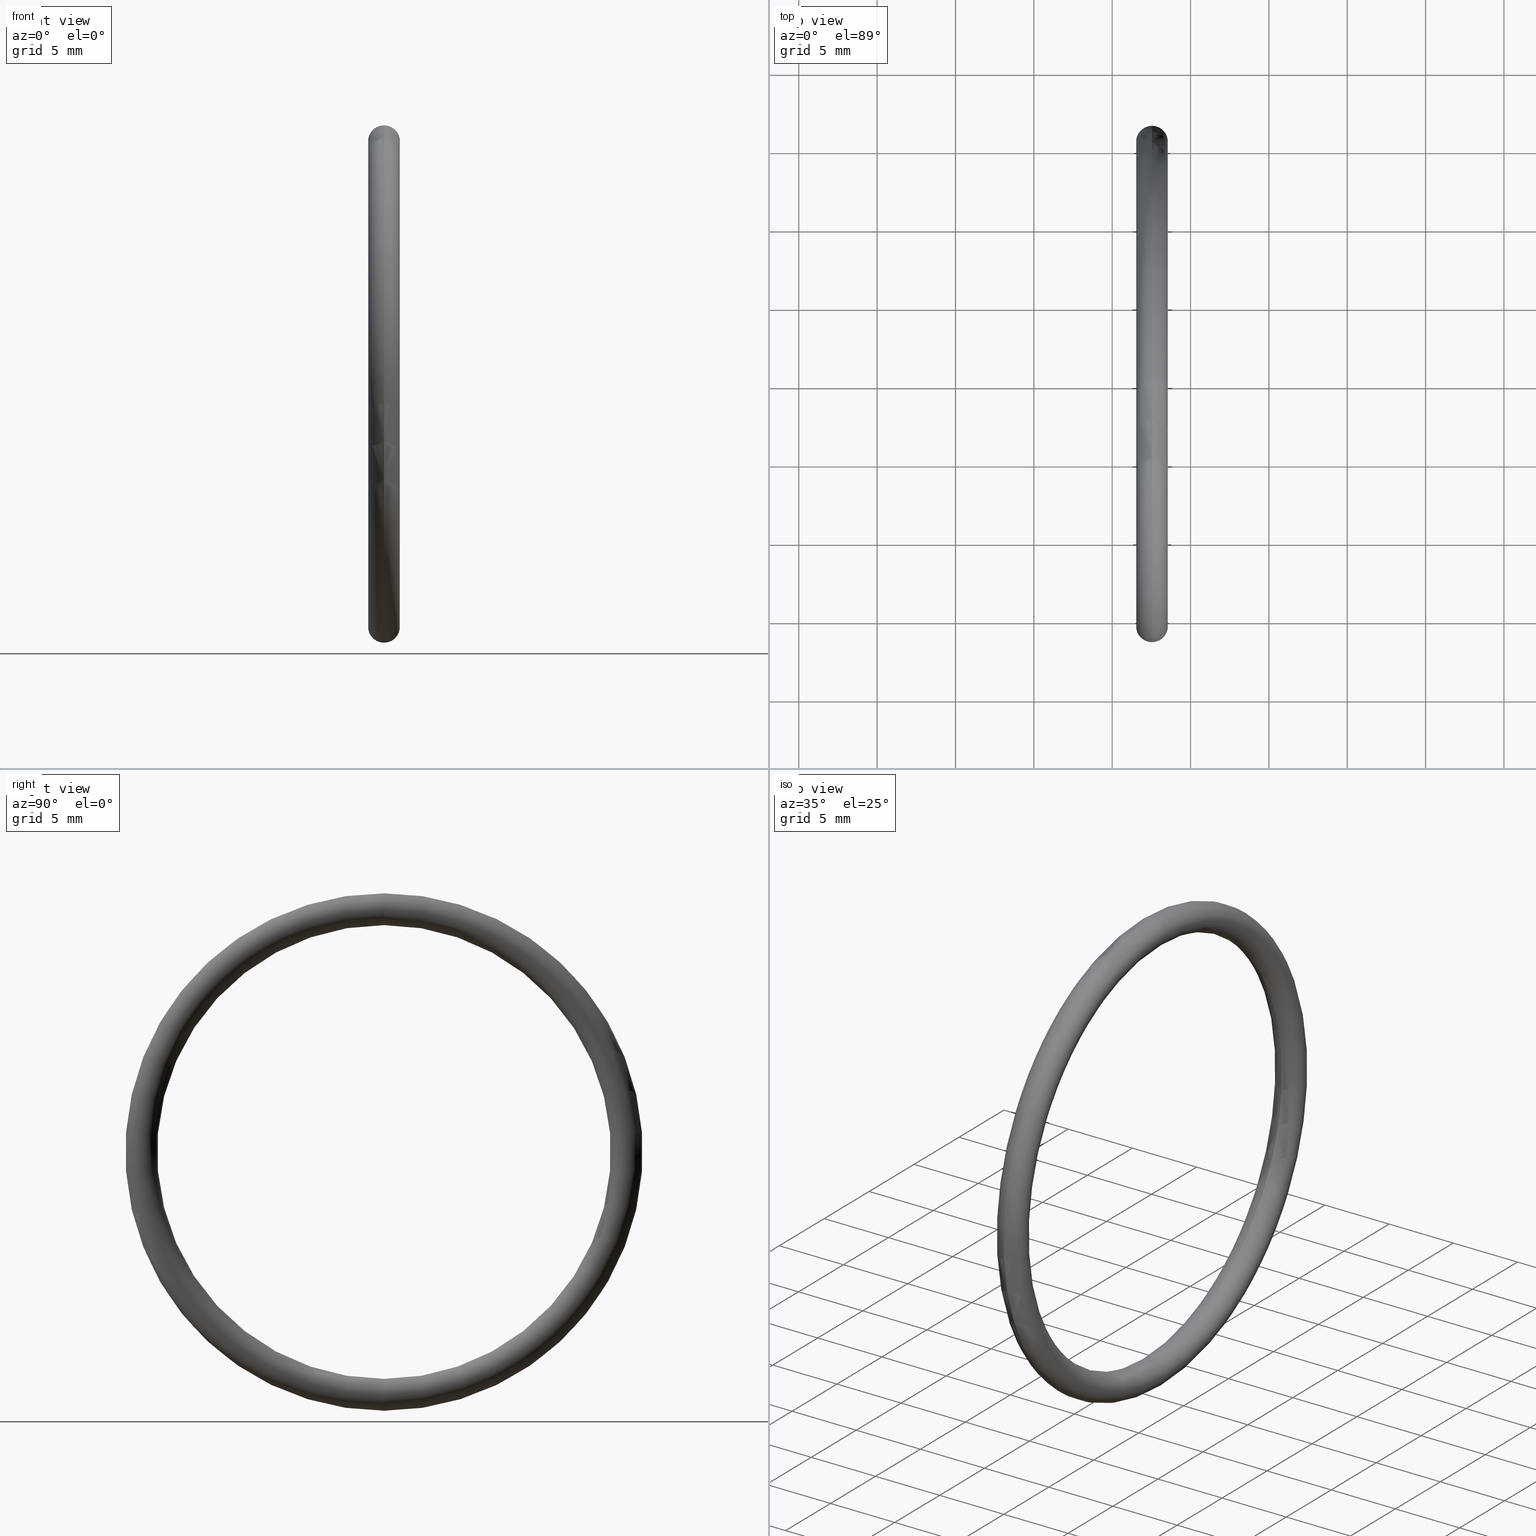
[diagram: canonical four-view strip — front | top / right | iso, engineering-drawing reading convention]
A machine part, canonical four-view strip (front | top / right | iso — engineering-drawing reading convention). The complete STEP part file that produces these views, byte-faithful:
ISO-10303-21;
HEADER;
FILE_DESCRIPTION (( 'STEP AP203' ),
    '1' );
FILE_NAME ('OR-10-VT.STEP',
    '2008-06-24T11:02:41',
    ( 'BSI05' ),
    ( 'BAYSTATE' ),
    'SwSTEP 2.0',
    'SolidWorks 2007',
    '' );
FILE_SCHEMA (( 'CONFIG_CONTROL_DESIGN' ));
ENDSEC;

DATA;
#1 = EDGE_CURVE ( 'NONE', #21, #9, #47, .T. ) ;
#2 = ORIENTED_EDGE ( 'NONE', *, *, #35, .F. ) ;
#3 = EDGE_LOOP ( 'NONE', ( #2, #6, #23, #7 ) ) ;
#4 = ADVANCED_FACE ( 'NONE', ( #48 ), #41, .T. ) ;
#5 = EDGE_CURVE ( 'NONE', #15, #9, #196, .T. ) ;
#6 = ORIENTED_EDGE ( 'NONE', *, *, #5, .F. ) ;
#7 = ORIENTED_EDGE ( 'NONE', *, *, #28, .T. ) ;
#8 = ORIENTED_EDGE ( 'NONE', *, *, #49, .F. ) ;
#9 = VERTEX_POINT ( 'NONE', #191 ) ;
#10 = CLOSED_SHELL ( 'NONE', ( #18, #20, #33, #4 ) ) ;
#11 = EDGE_LOOP ( 'NONE', ( #8, #19, #36, #34 ) ) ;
#12 = ORIENTED_EDGE ( 'NONE', *, *, #39, .F. ) ;
#13 = EDGE_LOOP ( 'NONE', ( #12, #24, #32, #26 ) ) ;
#14 = DIRECTION ( 'NONE',  ( -1.000000000000000000, 0.0000000000000000000, 0.0000000000000000000 ) ) ;
#15 = VERTEX_POINT ( 'NONE', #190 ) ;
#16 = DIRECTION ( 'NONE',  ( 0.0000000000000000000, 0.0000000000000000000, 1.000000000000000000 ) ) ;
#17 = MANIFOLD_SOLID_BREP ( 'NONE', #10 ) ;
#18 = ADVANCED_FACE ( 'NONE', ( #189 ), #186, .T. ) ;
#19 = ORIENTED_EDGE ( 'NONE', *, *, #35, .T. ) ;
#20 = ADVANCED_FACE ( 'NONE', ( #187 ), #182, .T. ) ;
#21 = VERTEX_POINT ( 'NONE', #177 ) ;
#22 = ORIENTED_EDGE ( 'NONE', *, *, #5, .T. ) ;
#23 = ORIENTED_EDGE ( 'NONE', *, *, #37, .T. ) ;
#24 = ORIENTED_EDGE ( 'NONE', *, *, #1, .T. ) ;
#25 = EDGE_CURVE ( 'NONE', #38, #15, #176, .T. ) ;
#26 = ORIENTED_EDGE ( 'NONE', *, *, #25, .F. ) ;
#27 = ORIENTED_EDGE ( 'NONE', *, *, #1, .F. ) ;
#28 = EDGE_CURVE ( 'NONE', #38, #21, #171, .T. ) ;
#29 = ORIENTED_EDGE ( 'NONE', *, *, #25, .T. ) ;
#30 = EDGE_LOOP ( 'NONE', ( #27, #31, #29, #22 ) ) ;
#31 = ORIENTED_EDGE ( 'NONE', *, *, #28, .F. ) ;
#32 = ORIENTED_EDGE ( 'NONE', *, *, #49, .T. ) ;
#33 = ADVANCED_FACE ( 'NONE', ( #166 ), #150, .T. ) ;
#34 = ORIENTED_EDGE ( 'NONE', *, *, #37, .F. ) ;
#35 = EDGE_CURVE ( 'NONE', #9, #21, #146, .T. ) ;
#36 = ORIENTED_EDGE ( 'NONE', *, *, #39, .T. ) ;
#37 = EDGE_CURVE ( 'NONE', #15, #38, #141, .T. ) ;
#38 = VERTEX_POINT ( 'NONE', #136 ) ;
#39 = EDGE_CURVE ( 'NONE', #21, #38, #135, .T. ) ;
#40 = AXIS2_PLACEMENT_3D ( 'NONE', #42, #14, #16 ) ;
#41 = TOROIDAL_SURFACE ( 'NONE', #40, 0.6099999999999998800, 0.04000000000000000100 ) ;
#42 = CARTESIAN_POINT ( 'NONE',  ( 0.1000000000000000900, 0.0000000000000000000, 0.0000000000000000000 ) ) ;
#43 = DIRECTION ( 'NONE',  ( 0.0000000000000000000, 0.0000000000000000000, 1.000000000000000000 ) ) ;
#44 = DIRECTION ( 'NONE',  ( -1.000000000000000000, 0.0000000000000000000, 0.0000000000000000000 ) ) ;
#45 = CARTESIAN_POINT ( 'NONE',  ( 0.1000000000000000900, 0.0000000000000000000, 0.0000000000000000000 ) ) ;
#46 = AXIS2_PLACEMENT_3D ( 'NONE', #45, #44, #43 ) ;
#47 = CIRCLE ( 'NONE', #46, 0.6499999999999999100 ) ;
#48 = FACE_OUTER_BOUND ( 'NONE', #3, .T. ) ;
#49 = EDGE_CURVE ( 'NONE', #9, #15, #130, .T. ) ;
#50 = CC_DESIGN_DATE_AND_TIME_ASSIGNMENT ( #52, #51, ( #59 ) ) ;
#51 = DATE_TIME_ROLE ( 'classification_date' ) ;
#52 = DATE_AND_TIME ( #53, #54 ) ;
#53 = CALENDAR_DATE ( 2008, 24, 6 ) ;
#54 = LOCAL_TIME ( 16, 32, 41.00000000000000000, #55 ) ;
#55 = COORDINATED_UNIVERSAL_TIME_OFFSET ( 5, 30, .AHEAD. ) ;
#56 = CC_DESIGN_PERSON_AND_ORGANIZATION_ASSIGNMENT ( #58, #57, ( #59 ) ) ;
#57 = PERSON_AND_ORGANIZATION_ROLE ( 'classification_officer' ) ;
#58 = PERSON_AND_ORGANIZATION ( #107, #106 ) ;
#59 = SECURITY_CLASSIFICATION ( '', '', #60 ) ;
#60 = SECURITY_CLASSIFICATION_LEVEL ( 'unclassified' ) ;
#61 = CC_DESIGN_PERSON_AND_ORGANIZATION_ASSIGNMENT ( #63, #62, ( #78 ) ) ;
#62 = PERSON_AND_ORGANIZATION_ROLE ( 'design_supplier' ) ;
#63 = PERSON_AND_ORGANIZATION ( #107, #106 ) ;
#64 = CC_DESIGN_PERSON_AND_ORGANIZATION_ASSIGNMENT ( #66, #65, ( #78 ) ) ;
#65 = PERSON_AND_ORGANIZATION_ROLE ( 'creator' ) ;
#66 = PERSON_AND_ORGANIZATION ( #107, #106 ) ;
#67 = CC_DESIGN_APPROVAL ( #75, ( #78 ) ) ;
#68 = APPROVAL_DATE_TIME ( #69, #75 ) ;
#69 = DATE_AND_TIME ( #70, #71 ) ;
#70 = CALENDAR_DATE ( 2008, 24, 6 ) ;
#71 = LOCAL_TIME ( 16, 32, 41.00000000000000000, #72 ) ;
#72 = COORDINATED_UNIVERSAL_TIME_OFFSET ( 5, 30, .AHEAD. ) ;
#73 = APPROVAL_PERSON_ORGANIZATION ( #77, #75, #74 ) ;
#74 = APPROVAL_ROLE ( '' ) ;
#75 = APPROVAL ( #76, 'UNSPECIFIED' ) ;
#76 = APPROVAL_STATUS ( 'not_yet_approved' ) ;
#77 = PERSON_AND_ORGANIZATION ( #107, #106 ) ;
#78 = PRODUCT_DEFINITION_FORMATION_WITH_SPECIFIED_SOURCE ( 'ANY', '', #108, .NOT_KNOWN. ) ;
#79 = CC_DESIGN_DATE_AND_TIME_ASSIGNMENT ( #81, #80, ( #99 ) ) ;
#80 = DATE_TIME_ROLE ( 'creation_date' ) ;
#81 = DATE_AND_TIME ( #82, #83 ) ;
#82 = CALENDAR_DATE ( 2008, 24, 6 ) ;
#83 = LOCAL_TIME ( 16, 32, 41.00000000000000000, #84 ) ;
#84 = COORDINATED_UNIVERSAL_TIME_OFFSET ( 5, 30, .AHEAD. ) ;
#85 = CC_DESIGN_PERSON_AND_ORGANIZATION_ASSIGNMENT ( #87, #86, ( #99 ) ) ;
#86 = PERSON_AND_ORGANIZATION_ROLE ( 'creator' ) ;
#87 = PERSON_AND_ORGANIZATION ( #107, #106 ) ;
#88 = CC_DESIGN_APPROVAL ( #96, ( #99 ) ) ;
#89 = APPROVAL_DATE_TIME ( #90, #96 ) ;
#90 = DATE_AND_TIME ( #91, #92 ) ;
#91 = CALENDAR_DATE ( 2008, 24, 6 ) ;
#92 = LOCAL_TIME ( 16, 32, 41.00000000000000000, #93 ) ;
#93 = COORDINATED_UNIVERSAL_TIME_OFFSET ( 5, 30, .AHEAD. ) ;
#94 = APPROVAL_PERSON_ORGANIZATION ( #98, #96, #95 ) ;
#95 = APPROVAL_ROLE ( '' ) ;
#96 = APPROVAL ( #97, 'UNSPECIFIED' ) ;
#97 = APPROVAL_STATUS ( 'not_yet_approved' ) ;
#98 = PERSON_AND_ORGANIZATION ( #107, #106 ) ;
#99 = PRODUCT_DEFINITION ( 'UNKNOWN', '', #78, #100 ) ;
#100 = DESIGN_CONTEXT ( 'detailed design', #102, 'design' ) ;
#101 = APPLICATION_PROTOCOL_DEFINITION ( 'international standard', 'config_control_design', 1994, #102 ) ;
#102 = APPLICATION_CONTEXT ( 'configuration controlled 3d designs of mechanical parts and assemblies' ) ;
#103 = CC_DESIGN_PERSON_AND_ORGANIZATION_ASSIGNMENT ( #105, #104, ( #108 ) ) ;
#104 = PERSON_AND_ORGANIZATION_ROLE ( 'design_owner' ) ;
#105 = PERSON_AND_ORGANIZATION ( #107, #106 ) ;
#106 = ORGANIZATION ( 'UNSPECIFIED', 'UNSPECIFIED', '' ) ;
#107 = PERSON ( 'UNSPECIFIED', 'UNSPECIFIED', 'UNSPECIFIED', ('UNSPECIFIED'), ('UNSPECIFIED'), ('UNSPECIFIED') ) ;
#108 = PRODUCT ( 'OR-10-VT', 'OR-10-VT', '', ( #109 ) ) ;
#109 = MECHANICAL_CONTEXT ( 'NONE', #111, 'mechanical' ) ;
#110 = APPLICATION_PROTOCOL_DEFINITION ( 'international standard', 'config_control_design', 1994, #111 ) ;
#111 = APPLICATION_CONTEXT ( 'configuration controlled 3d designs of mechanical parts and assemblies' ) ;
#112 = DIRECTION ( 'NONE',  ( 1.000000000000000000, 0.0000000000000000000, 0.0000000000000000000 ) ) ;
#113 = CARTESIAN_POINT ( 'NONE',  ( 0.0000000000000000000, 0.0000000000000000000, 0.0000000000000000000 ) ) ;
#114 = AXIS2_PLACEMENT_3D ( 'NONE', #113, #125, #112 ) ;
#115 = SHAPE_DEFINITION_REPRESENTATION ( #151, #116 ) ;
#116 = ADVANCED_BREP_SHAPE_REPRESENTATION ( 'OR-10-VT', ( #17, #114 ), #117 ) ;
#117 =( GEOMETRIC_REPRESENTATION_CONTEXT ( 3 ) GLOBAL_UNCERTAINTY_ASSIGNED_CONTEXT ( ( #118 ) ) GLOBAL_UNIT_ASSIGNED_CONTEXT ( ( #121, #120, #119 ) ) REPRESENTATION_CONTEXT ( 'NONE', 'WORKASPACE' ) );
#118 = UNCERTAINTY_MEASURE_WITH_UNIT (LENGTH_MEASURE( 1.000000000000000100E-005 ), #121, 'distance_accuracy_value', 'NONE');
#119 =( NAMED_UNIT ( * ) SI_UNIT ( $, .STERADIAN. ) SOLID_ANGLE_UNIT ( ) );
#120 =( NAMED_UNIT ( * ) PLANE_ANGLE_UNIT ( ) SI_UNIT ( $, .RADIAN. ) );
#121 =( CONVERSION_BASED_UNIT ( 'INCH', #122 ) LENGTH_UNIT ( ) NAMED_UNIT ( #123 ) );
#122 = LENGTH_MEASURE_WITH_UNIT ( LENGTH_MEASURE( 0.02539999999999999900 ), #124 );
#123 = DIMENSIONAL_EXPONENTS ( 1.000000000000000000, 0.0000000000000000000, 0.0000000000000000000, 0.0000000000000000000, 0.0000000000000000000, 0.0000000000000000000, 0.0000000000000000000 ) ;
#124 =( LENGTH_UNIT ( ) NAMED_UNIT ( * ) SI_UNIT ( $, .METRE. ) );
#125 = DIRECTION ( 'NONE',  ( 0.0000000000000000000, 0.0000000000000000000, 1.000000000000000000 ) ) ;
#126 = DIRECTION ( 'NONE',  ( 0.0000000000000000000, -1.224646799147354900E-016, 1.000000000000000000 ) ) ;
#127 = DIRECTION ( 'NONE',  ( 0.0000000000000000000, 1.000000000000000000, 1.224646799147353200E-016 ) ) ;
#128 = CARTESIAN_POINT ( 'NONE',  ( 0.1000000000000000900, 7.470345474798854000E-017, -0.6099999999999998800 ) ) ;
#129 = AXIS2_PLACEMENT_3D ( 'NONE', #128, #127, #126 ) ;
#130 = CIRCLE ( 'NONE', #129, 0.03999999999999998000 ) ;
#131 = DIRECTION ( 'NONE',  ( 0.0000000000000000000, 0.0000000000000000000, -1.000000000000000000 ) ) ;
#132 = DIRECTION ( 'NONE',  ( 0.0000000000000000000, -1.000000000000000000, 0.0000000000000000000 ) ) ;
#133 = CARTESIAN_POINT ( 'NONE',  ( 0.1000000000000000900, 0.0000000000000000000, 0.6099999999999998800 ) ) ;
#134 = AXIS2_PLACEMENT_3D ( 'NONE', #133, #132, #131 ) ;
#135 = CIRCLE ( 'NONE', #134, 0.03999999999999998000 ) ;
#136 = CARTESIAN_POINT ( 'NONE',  ( 0.1000000000000000900, 0.0000000000000000000, 0.5699999999999999500 ) ) ;
#137 = DIRECTION ( 'NONE',  ( 0.0000000000000000000, 0.0000000000000000000, 1.000000000000000000 ) ) ;
#138 = DIRECTION ( 'NONE',  ( -1.000000000000000000, 0.0000000000000000000, 0.0000000000000000000 ) ) ;
#139 = CARTESIAN_POINT ( 'NONE',  ( 0.1000000000000000900, 0.0000000000000000000, 0.0000000000000000000 ) ) ;
#140 = AXIS2_PLACEMENT_3D ( 'NONE', #139, #138, #137 ) ;
#141 = CIRCLE ( 'NONE', #140, 0.5699999999999999500 ) ;
#142 = DIRECTION ( 'NONE',  ( 0.0000000000000000000, 0.0000000000000000000, 1.000000000000000000 ) ) ;
#143 = DIRECTION ( 'NONE',  ( -1.000000000000000000, 0.0000000000000000000, 0.0000000000000000000 ) ) ;
#144 = CARTESIAN_POINT ( 'NONE',  ( 0.1000000000000000900, 0.0000000000000000000, 0.0000000000000000000 ) ) ;
#145 = AXIS2_PLACEMENT_3D ( 'NONE', #144, #143, #142 ) ;
#146 = CIRCLE ( 'NONE', #145, 0.6499999999999999100 ) ;
#147 = DIRECTION ( 'NONE',  ( 0.0000000000000000000, 0.0000000000000000000, 1.000000000000000000 ) ) ;
#148 = DIRECTION ( 'NONE',  ( -1.000000000000000000, 0.0000000000000000000, 0.0000000000000000000 ) ) ;
#149 = AXIS2_PLACEMENT_3D ( 'NONE', #165, #148, #147 ) ;
#150 = TOROIDAL_SURFACE ( 'NONE', #149, 0.6099999999999998800, 0.04000000000000000100 ) ;
#151 = PRODUCT_DEFINITION_SHAPE ( 'NONE', 'NONE',  #99 ) ;
#152 = PRODUCT_RELATED_PRODUCT_CATEGORY ( 'detail', '', ( #108 ) ) ;
#153 = CC_DESIGN_SECURITY_CLASSIFICATION ( #59, ( #78 ) ) ;
#154 = CC_DESIGN_APPROVAL ( #162, ( #59 ) ) ;
#155 = APPROVAL_DATE_TIME ( #156, #162 ) ;
#156 = DATE_AND_TIME ( #157, #158 ) ;
#157 = CALENDAR_DATE ( 2008, 24, 6 ) ;
#158 = LOCAL_TIME ( 16, 32, 41.00000000000000000, #159 ) ;
#159 = COORDINATED_UNIVERSAL_TIME_OFFSET ( 5, 30, .AHEAD. ) ;
#160 = APPROVAL_PERSON_ORGANIZATION ( #164, #162, #161 ) ;
#161 = APPROVAL_ROLE ( '' ) ;
#162 = APPROVAL ( #163, 'UNSPECIFIED' ) ;
#163 = APPROVAL_STATUS ( 'not_yet_approved' ) ;
#164 = PERSON_AND_ORGANIZATION ( #107, #106 ) ;
#165 = CARTESIAN_POINT ( 'NONE',  ( 0.1000000000000000900, 0.0000000000000000000, 0.0000000000000000000 ) ) ;
#166 = FACE_OUTER_BOUND ( 'NONE', #30, .T. ) ;
#167 = DIRECTION ( 'NONE',  ( 0.0000000000000000000, 0.0000000000000000000, -1.000000000000000000 ) ) ;
#168 = DIRECTION ( 'NONE',  ( 0.0000000000000000000, -1.000000000000000000, 0.0000000000000000000 ) ) ;
#169 = CARTESIAN_POINT ( 'NONE',  ( 0.1000000000000000900, 0.0000000000000000000, 0.6099999999999998800 ) ) ;
#170 = AXIS2_PLACEMENT_3D ( 'NONE', #169, #168, #167 ) ;
#171 = CIRCLE ( 'NONE', #170, 0.03999999999999998000 ) ;
#172 = DIRECTION ( 'NONE',  ( 0.0000000000000000000, 0.0000000000000000000, 1.000000000000000000 ) ) ;
#173 = DIRECTION ( 'NONE',  ( -1.000000000000000000, 0.0000000000000000000, 0.0000000000000000000 ) ) ;
#174 = CARTESIAN_POINT ( 'NONE',  ( 0.1000000000000000900, 0.0000000000000000000, 0.0000000000000000000 ) ) ;
#175 = AXIS2_PLACEMENT_3D ( 'NONE', #174, #173, #172 ) ;
#176 = CIRCLE ( 'NONE', #175, 0.5699999999999999500 ) ;
#177 = CARTESIAN_POINT ( 'NONE',  ( 0.1000000000000000900, 0.0000000000000000000, 0.6499999999999999100 ) ) ;
#178 = DIRECTION ( 'NONE',  ( 0.0000000000000000000, 0.0000000000000000000, 1.000000000000000000 ) ) ;
#179 = DIRECTION ( 'NONE',  ( -1.000000000000000000, 0.0000000000000000000, 0.0000000000000000000 ) ) ;
#180 = CARTESIAN_POINT ( 'NONE',  ( 0.1000000000000000900, 0.0000000000000000000, 0.0000000000000000000 ) ) ;
#181 = AXIS2_PLACEMENT_3D ( 'NONE', #180, #179, #178 ) ;
#182 = TOROIDAL_SURFACE ( 'NONE', #181, 0.6099999999999998800, 0.04000000000000000100 ) ;
#183 = DIRECTION ( 'NONE',  ( 0.0000000000000000000, 0.0000000000000000000, 1.000000000000000000 ) ) ;
#184 = DIRECTION ( 'NONE',  ( -1.000000000000000000, 0.0000000000000000000, 0.0000000000000000000 ) ) ;
#185 = AXIS2_PLACEMENT_3D ( 'NONE', #188, #184, #183 ) ;
#186 = TOROIDAL_SURFACE ( 'NONE', #185, 0.6099999999999998800, 0.04000000000000000100 ) ;
#187 = FACE_OUTER_BOUND ( 'NONE', #13, .T. ) ;
#188 = CARTESIAN_POINT ( 'NONE',  ( 0.1000000000000000900, 0.0000000000000000000, 0.0000000000000000000 ) ) ;
#189 = FACE_OUTER_BOUND ( 'NONE', #11, .T. ) ;
#190 = CARTESIAN_POINT ( 'NONE',  ( 0.1000000000000000900, 6.980486755139912600E-017, -0.5699999999999999500 ) ) ;
#191 = CARTESIAN_POINT ( 'NONE',  ( 0.1000000000000000900, 7.960204194457794200E-017, -0.6499999999999999100 ) ) ;
#192 = DIRECTION ( 'NONE',  ( 0.0000000000000000000, -1.224646799147354900E-016, 1.000000000000000000 ) ) ;
#193 = DIRECTION ( 'NONE',  ( 0.0000000000000000000, 1.000000000000000000, 1.224646799147353200E-016 ) ) ;
#194 = CARTESIAN_POINT ( 'NONE',  ( 0.1000000000000000900, 7.470345474798854000E-017, -0.6099999999999998800 ) ) ;
#195 = AXIS2_PLACEMENT_3D ( 'NONE', #194, #193, #192 ) ;
#196 = CIRCLE ( 'NONE', #195, 0.03999999999999998000 ) ;
ENDSEC;
END-ISO-10303-21;
